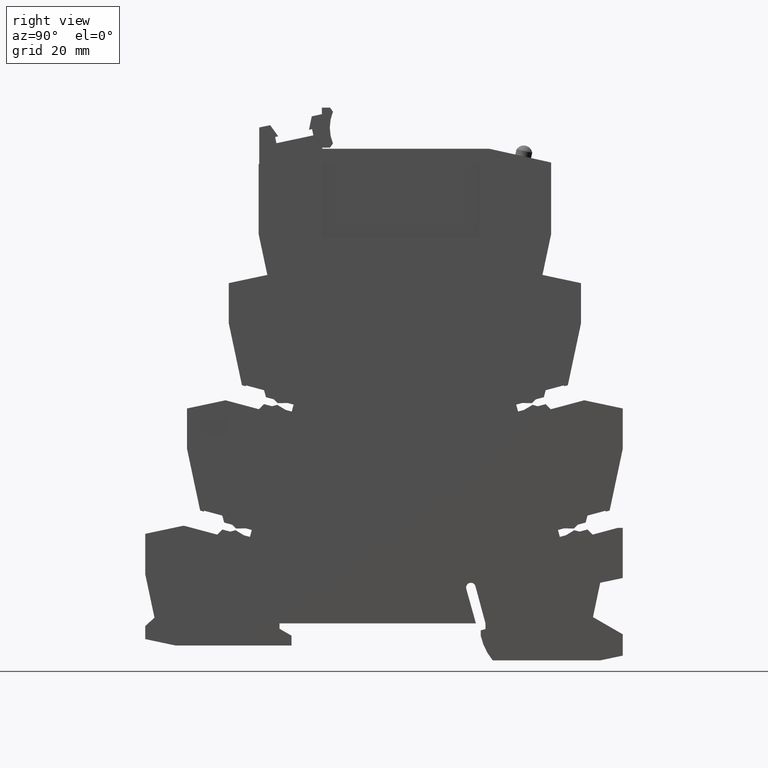
[diagram: clean part render]
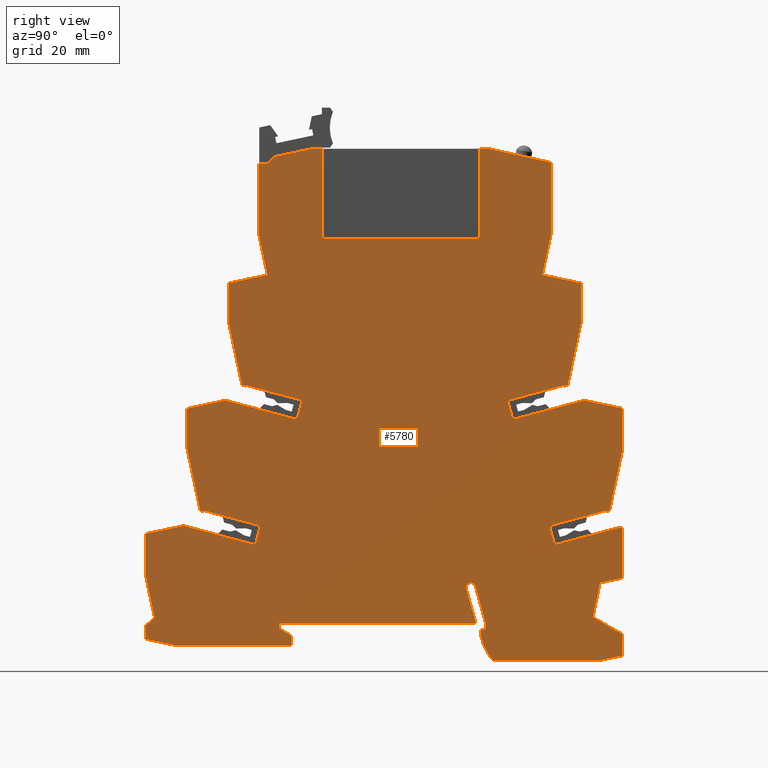
[diagram: same view with one face highlighted and labeled with its STEP entity id]
A machine part, right view. The second image highlights one B-rep face of the part: STEP entity #5780.
In plain terms, the highlighted planar face has unit normal (1, 0, 0).
Its self-contained STEP definition (entity closure, byte-faithful):
#10=CARTESIAN_POINT('',(-41.2024631599214,15.7598284331257,
-3.99680288865056E-14));
#20=DIRECTION('',(-2.14242122378234E-29,-5.76150921084601E-16,1.));
#30=DIRECTION('',(1.,-3.74348700186527E-14,-1.43922604105651E-31));
#40=AXIS2_PLACEMENT_3D('',#10,#20,#30);
#50=PLANE('',#40);
#60=CARTESIAN_POINT('',(-20.1962500104299,34.8627937824497,
-2.01261229904048E-12));
#70=DIRECTION('',(0.743144825475798,0.669130606360631,
4.88723472079392E-15));
#80=VECTOR('',#70,1.);
#90=LINE('',#60,#80);
#100=CARTESIAN_POINT('',(-47.6010493290193,10.1874016427028,
-2.19380069665931E-12));
#110=VERTEX_POINT('',#100);
#120=CARTESIAN_POINT('',(-46.0467110794914,11.5869339958258,
-4.2632564145606E-14));
#130=VERTEX_POINT('',#120);
#140=EDGE_CURVE('',#110,#130,#90,.T.);
#150=ORIENTED_EDGE('',*,*,#140,.F.);
#160=CARTESIAN_POINT('',(-32.8587751002324,-50.4574266940775,
-2.31370478331883E-12));
#170=DIRECTION('',(0.207911690817737,-0.97814760073381,
-7.78023144077334E-15));
#180=VECTOR('',#170,1.);
#190=LINE('',#160,#180);
#200=CARTESIAN_POINT('',(-47.6010491809858,18.8995198284268,
-1.76214598468505E-12));
#210=VERTEX_POINT('',#200);
#220=EDGE_CURVE('',#210,#130,#190,.T.);
#230=ORIENTED_EDGE('',*,*,#220,.T.);
#240=CARTESIAN_POINT('',(-47.6010491809918,-50.4574266940734,
-1.76214598468505E-12));
#250=DIRECTION('',(-8.59705591847893E-14,-1.,4.03965808802365E-27));
#260=VECTOR('',#250,1.);
#270=LINE('',#240,#260);
#280=CARTESIAN_POINT('',(-47.6010491809852,25.6331479114264,
-1.76303416310475E-12));
#290=VERTEX_POINT('',#280);
#300=EDGE_CURVE('',#290,#210,#270,.T.);
#310=ORIENTED_EDGE('',*,*,#300,.T.);
#320=CARTESIAN_POINT('',(-20.1962500104303,31.4582178278494,
-2.01438865587988E-12));
#330=DIRECTION('',(0.978147600733789,0.207911690817837,
6.04506860819232E-15));
#340=VECTOR('',#330,1.);
#350=LINE('',#320,#340);
#360=CARTESIAN_POINT('',(-41.1452750161251,27.0053651022978,
-3.37507799486048E-14));
#370=VERTEX_POINT('',#360);
#380=EDGE_CURVE('',#290,#370,#350,.T.);
#390=ORIENTED_EDGE('',*,*,#380,.F.);
#400=CARTESIAN_POINT('',(-20.1962500104314,21.3920907697968,
-2.02149408323749E-12));
#410=DIRECTION('',(0.965925826288999,-0.258819045102781,
5.7021259793197E-15));
#420=VECTOR('',#410,1.);
#430=LINE('',#400,#420);
#440=CARTESIAN_POINT('',(-29.1677949182364,23.7960089430301,
-3.64153152077051E-14));
#450=VERTEX_POINT('',#440);
#460=EDGE_CURVE('',#370,#450,#430,.T.);
#470=ORIENTED_EDGE('',*,*,#460,.F.);
#480=CARTESIAN_POINT('',(-37.8100769419042,-8.45742666263268,
-5.41788836017076E-14));
#490=DIRECTION('',(-0.258819045102554,-0.965925826289059,
-5.27355936696949E-16));
#500=VECTOR('',#490,1.);
#510=LINE('',#480,#500);
#520=CARTESIAN_POINT('',(-28.3136920694185,26.9835641697074,
-3.46389583683049E-14));
#530=VERTEX_POINT('',#520);
#540=EDGE_CURVE('',#530,#450,#510,.T.);
#550=ORIENTED_EDGE('',*,*,#540,.T.);
#560=CARTESIAN_POINT('',(1.74895067094092,18.9283033250858,
-3.73034936274053E-14));
#570=DIRECTION('',(0.965925826289093,-0.258819045102429,
-1.52655665885959E-16));
#580=VECTOR('',#570,1.);
#590=LINE('',#560,#580);
#600=CARTESIAN_POINT('',(-37.7169289085015,29.5031538869773,
-3.10862446895044E-14));
#610=VERTEX_POINT('',#600);
#620=EDGE_CURVE('',#610,#530,#590,.T.);
#630=ORIENTED_EDGE('',*,*,#620,.T.);
#640=CARTESIAN_POINT('',(-47.8884358109929,-8.45742666263268,
-5.41788836017076E-14));
#650=DIRECTION('',(-0.258819045102684,-0.965925826289025,
-5.27355936696949E-16));
#660=VECTOR('',#650,1.);
#670=LINE('',#640,#660);
#680=CARTESIAN_POINT('',(-37.7557445446579,29.3582919607137,
-3.37507799486048E-14));
#690=VERTEX_POINT('',#680);
#700=EDGE_CURVE('',#610,#690,#670,.T.);
#710=ORIENTED_EDGE('',*,*,#700,.F.);
#720=CARTESIAN_POINT('',(-20.196250010431,24.6532395807655,
-2.01794136955868E-12));
#730=DIRECTION('',(-0.965925826289024,0.258819045102685,
-5.70212597931992E-15));
#740=VECTOR('',#730,1.);
#750=LINE('',#720,#740);
#760=CARTESIAN_POINT('',(-38.3969618472459,29.5301056191149,
-3.28626015289046E-14));
#770=VERTEX_POINT('',#760);
#780=EDGE_CURVE('',#690,#770,#750,.T.);
#790=ORIENTED_EDGE('',*,*,#780,.F.);
#800=CARTESIAN_POINT('',(-45.8383256010708,64.5389695909327,
-2.1511681325137E-12));
#810=DIRECTION('',(-0.207911690817807,0.978147600733796,
-6.95896523024038E-16));
#820=VECTOR('',#810,1.);
#830=LINE('',#800,#820);
#840=CARTESIAN_POINT('',(-40.6010493289954,39.8995198598626,
1.92379445707047E-12));
#850=VERTEX_POINT('',#840);
#860=EDGE_CURVE('',#770,#850,#830,.T.);
#870=ORIENTED_EDGE('',*,*,#860,.F.);
#880=CARTESIAN_POINT('',(-40.6010493290013,-29.4574266626376,
1.92379445707047E-12));
#890=DIRECTION('',(-8.59705591847893E-14,-1.,4.03965808802365E-27));
#900=VECTOR('',#890,1.);
#910=LINE('',#880,#900);
#920=CARTESIAN_POINT('',(-40.6010493289948,46.6331479428621,
1.92290627865077E-12));
#930=VERTEX_POINT('',#920);
#940=EDGE_CURVE('',#930,#850,#910,.T.);
#950=ORIENTED_EDGE('',*,*,#940,.T.);
#960=CARTESIAN_POINT('',(-20.1962500104282,50.9703219276015,
-2.00373051484348E-12));
#970=DIRECTION('',(0.978147600733766,0.207911690817949,
6.04506860819225E-15));
#980=VECTOR('',#970,1.);
#990=LINE('',#960,#980);
#1000=CARTESIAN_POINT('',(-34.1452750815475,48.0053651198326,
-2.08899564313469E-12));
#1010=VERTEX_POINT('',#1000);
#1020=EDGE_CURVE('',#930,#1010,#990,.T.);
#1030=ORIENTED_EDGE('',*,*,#1020,.F.);
#1040=CARTESIAN_POINT('',(-20.1962500104289,44.2677351168232,
-2.00728322852228E-12));
#1050=DIRECTION('',(0.965925826289038,-0.258819045102634,
5.70212597932002E-15));
#1060=VECTOR('',#1050,1.);
#1070=LINE('',#1040,#1060);
#1080=CARTESIAN_POINT('',(-22.1702447486371,44.7966653731087,
-2.39808173319034E-14));
#1090=VERTEX_POINT('',#1080);
#1100=EDGE_CURVE('',#1010,#1090,#1070,.T.);
#1110=ORIENTED_EDGE('',*,*,#1100,.F.);
#1120=CARTESIAN_POINT('',(-36.4396357032687,-8.45742666263268,
-5.50670620214078E-14));
#1130=DIRECTION('',(-0.258819045102555,-0.965925826289059,
-5.27355936696949E-16));
#1140=VECTOR('',#1130,1.);
#1150=LINE('',#1120,#1140);
#1160=CARTESIAN_POINT('',(-21.3161418998062,47.9842205998348,
-2.39808173319034E-14));
#1170=VERTEX_POINT('',#1160);
#1180=EDGE_CURVE('',#1170,#1090,#1150,.T.);
#1190=ORIENTED_EDGE('',*,*,#1180,.T.);
#1200=CARTESIAN_POINT('',(-20.1962500104286,47.6841465121486,
-2.00550687168288E-12));
#1210=DIRECTION('',(-0.96592582628908,0.258819045102477,
-5.70212597932037E-15));
#1220=VECTOR('',#1210,1.);
#1230=LINE('',#1200,#1220);
#1240=CARTESIAN_POINT('',(-30.7169288985628,50.5031539240508,
-2.06767936106189E-12));
#1250=VERTEX_POINT('',#1240);
#1260=EDGE_CURVE('',#1170,#1250,#1230,.T.);
#1270=ORIENTED_EDGE('',*,*,#1260,.F.);
#1280=CARTESIAN_POINT('',(-26.9560434255087,64.5389695909307,
-2.03748129479209E-12));
#1290=DIRECTION('',(-0.258819045102676,-0.965925826289027,
-2.12435537621986E-15));
#1300=VECTOR('',#1290,1.);
#1310=LINE('',#1280,#1300);
#1320=CARTESIAN_POINT('',(-30.7557445446533,50.3582919607126,
-2.06767936106189E-12));
#1330=VERTEX_POINT('',#1320);
#1340=EDGE_CURVE('',#1250,#1330,#1310,.T.);
#1350=ORIENTED_EDGE('',*,*,#1340,.F.);
#1360=CARTESIAN_POINT('',(-20.1962500104286,47.5288839277843,
-2.00550687168288E-12));
#1370=DIRECTION('',(-0.965925826289024,0.258819045102685,
-5.70212597931992E-15));
#1380=VECTOR('',#1370,1.);
#1390=LINE('',#1360,#1380);
#1400=CARTESIAN_POINT('',(-31.3969621612845,50.5301057032615,
-2.07123207474069E-12));
#1410=VERTEX_POINT('',#1400);
#1420=EDGE_CURVE('',#1330,#1410,#1390,.T.);
#1430=ORIENTED_EDGE('',*,*,#1420,.F.);
#1440=CARTESIAN_POINT('',(-34.3746381021517,64.5389695909315,
-2.08189021577709E-12));
#1450=DIRECTION('',(-0.207911690817807,0.978147600733796,
-6.95896523024038E-16));
#1460=VECTOR('',#1450,1.);
#1470=LINE('',#1440,#1460);
#1480=CARTESIAN_POINT('',(-33.6010493289925,60.8995198598723,
-2.28617125230812E-12));
#1490=VERTEX_POINT('',#1480);
#1500=EDGE_CURVE('',#1410,#1490,#1470,.T.);
#1510=ORIENTED_EDGE('',*,*,#1500,.F.);
#1520=CARTESIAN_POINT('',(-33.6010493289984,-8.45742666262793,
-2.28617125230812E-12));
#1530=DIRECTION('',(-8.59705591847893E-14,-1.,4.03965808802365E-27));
#1540=VECTOR('',#1530,1.);
#1550=LINE('',#1520,#1540);
#1560=CARTESIAN_POINT('',(-33.6010493289919,67.6331479428718,
-2.28705943072782E-12));
#1570=VERTEX_POINT('',#1560);
#1580=EDGE_CURVE('',#1570,#1490,#1550,.T.);
#1590=ORIENTED_EDGE('',*,*,#1580,.T.);
#1600=CARTESIAN_POINT('',(-20.1962500104261,70.4824259959085,
-1.99307237380708E-12));
#1610=DIRECTION('',(0.978147600733766,0.207911690817949,
6.04506860819225E-15));
#1620=VECTOR('',#1610,1.);
#1630=LINE('',#1600,#1620);
#1640=CARTESIAN_POINT('',(-27.1452750225532,69.0053651323703,
-8.88178419700125E-15));
#1650=VERTEX_POINT('',#1640);
#1660=EDGE_CURVE('',#1570,#1650,#1630,.T.);
#1670=ORIENTED_EDGE('',*,*,#1660,.F.);
#1680=CARTESIAN_POINT('',(-26.1959133432063,64.5389695909306,
-2.03215222427389E-12));
#1690=DIRECTION('',(-0.207911690817804,0.978147600733796,
-6.95896523024023E-16));
#1700=VECTOR('',#1690,1.);
#1710=LINE('',#1680,#1700);
#1720=CARTESIAN_POINT('',(-28.6010493288756,75.8542447664981,
-3.5527136788005E-15));
#1730=VERTEX_POINT('',#1720);
#1740=EDGE_CURVE('',#1650,#1730,#1710,.T.);
#1750=ORIENTED_EDGE('',*,*,#1740,.F.);
#1760=CARTESIAN_POINT('',(-28.6010493290614,64.5389695909309,
-2.04813943582849E-12));
#1770=DIRECTION('',(1.06627280559842E-13,1.,5.76150921084606E-16));
#1780=VECTOR('',#1770,1.);
#1790=LINE('',#1760,#1780);
#1800=CARTESIAN_POINT('',(-28.6010493290589,87.583147942921,
-2.03392858111329E-12));
#1810=VERTEX_POINT('',#1800);
#1820=EDGE_CURVE('',#1730,#1810,#1790,.T.);
#1830=ORIENTED_EDGE('',*,*,#1820,.F.);
#1840=CARTESIAN_POINT('',(-20.1962500104243,87.5831479429386,
-1.98241423277068E-12));
#1850=DIRECTION('',(1.,-1.06627280562636E-13,6.05765437811063E-15));
#1860=VECTOR('',#1850,1.);
#1870=LINE('',#1840,#1860);
#1880=CARTESIAN_POINT('',(-27.2010493290596,87.5831479429391,
-2.02504679691629E-12));
#1890=VERTEX_POINT('',#1880);
#1900=EDGE_CURVE('',#1810,#1890,#1870,.T.);
#1910=ORIENTED_EDGE('',*,*,#1900,.F.);
#1920=CARTESIAN_POINT('',(-50.2452276810685,64.5389695909332,
-2.17781348510471E-12));
#1930=DIRECTION('',(0.707106781186593,0.707106781186502,
4.69080871213204E-15));
#1940=VECTOR('',#1930,1.);
#1950=LINE('',#1920,#1940);
#1960=CARTESIAN_POINT('',(-25.9737184904052,88.8104787815934,
1.77635683940025E-15));
#1970=VERTEX_POINT('',#1960);
#1980=EDGE_CURVE('',#1890,#1970,#1950,.T.);
#1990=ORIENTED_EDGE('',*,*,#1980,.F.);
#2000=CARTESIAN_POINT('',(-20.196250010424,90.0385176168545,
-1.98063787593128E-12));
#2010=DIRECTION('',(0.978147600733827,0.207911690817657,
6.04506860819245E-15));
#2020=VECTOR('',#2010,1.);
#2030=LINE('',#2000,#2020);
#2040=CARTESIAN_POINT('',(-19.7510496118659,90.1331479128581,
2.66453525910038E-15));
#2050=VERTEX_POINT('',#2040);
#2060=EDGE_CURVE('',#1970,#2050,#2030,.T.);
#2070=ORIENTED_EDGE('',*,*,#2060,.F.);
#2080=CARTESIAN_POINT('',(1.74895067094092,90.1331479128558,
2.66453525910038E-15));
#2090=DIRECTION('',(1.,-1.06264632095782E-13,-4.41762106923767E-29));
#2100=VECTOR('',#2090,1.);
#2110=LINE('',#2080,#2100);
#2120=CARTESIAN_POINT('',(-17.9510493290116,90.1331479128579,
2.66453525910038E-15));
#2130=VERTEX_POINT('',#2120);
#2140=EDGE_CURVE('',#2050,#2130,#2110,.T.);
#2150=ORIENTED_EDGE('',*,*,#2140,.F.);
#2160=CARTESIAN_POINT('',(-17.9510493290187,-8.45742666263268,
-5.41788836017076E-14));
#2170=DIRECTION('',(7.21517471705881E-14,1.,5.76150921084603E-16));
#2180=VECTOR('',#2170,1.);
#2190=LINE('',#2160,#2180);
#2200=CARTESIAN_POINT('',(-17.9510493290127,75.1331479429036,
-6.21724893790088E-15));
#2210=VERTEX_POINT('',#2200);
#2220=EDGE_CURVE('',#2210,#2130,#2190,.T.);
#2230=ORIENTED_EDGE('',*,*,#2220,.T.);
#2240=CARTESIAN_POINT('',(1.74895067094092,75.1331479429026,
-6.21724893790088E-15));
#2250=DIRECTION('',(-1.,5.35592122515322E-14,1.57772181044202E-29));
#2260=VECTOR('',#2250,1.);
#2270=LINE('',#2240,#2260);
#2280=CARTESIAN_POINT('',(8.34895067098745,75.1331479429022,
-6.21724893790088E-15));
#2290=VERTEX_POINT('',#2280);
#2300=EDGE_CURVE('',#2290,#2210,#2270,.T.);
#2310=ORIENTED_EDGE('',*,*,#2300,.T.);
#2320=CARTESIAN_POINT('',(8.34895067098364,-8.45742666263268,
-5.41788836017076E-14));
#2330=DIRECTION('',(-4.56248183688777E-14,-1.,-5.76150921084603E-16));
#2340=VECTOR('',#2330,1.);
#2350=LINE('',#2320,#2340);
#2360=CARTESIAN_POINT('',(8.34895067098814,90.1331479429304,
2.66453525910038E-15));
#2370=VERTEX_POINT('',#2360);
#2380=EDGE_CURVE('',#2370,#2290,#2350,.T.);
#2390=ORIENTED_EDGE('',*,*,#2380,.T.);
#2400=CARTESIAN_POINT('',(1.74895067094092,90.1331479429311,
2.66453525910038E-15));
#2410=DIRECTION('',(1.,-1.06264632095782E-13,-4.41762106923767E-29));
#2420=VECTOR('',#2410,1.);
#2430=LINE('',#2400,#2420);
#2440=CARTESIAN_POINT('',(10.048950523031,90.1331479429302,
2.66453525910038E-15));
#2450=VERTEX_POINT('',#2440);
#2460=EDGE_CURVE('',#2370,#2450,#2430,.T.);
#2470=ORIENTED_EDGE('',*,*,#2460,.F.);
#2480=CARTESIAN_POINT('',(-20.1962500104233,96.8543036170327,
-1.97708516225248E-12));
#2490=DIRECTION('',(0.976187060183942,-0.216930457818704,
5.78841913589485E-15));
#2500=VECTOR('',#2490,1.);
#2510=LINE('',#2480,#2500);
#2520=CARTESIAN_POINT('',(20.3989506709411,87.8331479100607,
8.88178419700125E-16));
#2530=VERTEX_POINT('',#2520);
#2540=EDGE_CURVE('',#2450,#2530,#2510,.T.);
#2550=ORIENTED_EDGE('',*,*,#2540,.F.);
#2560=CARTESIAN_POINT('',(20.3989506709386,64.5389695909256,
-1.74971148680925E-12));
#2570=DIRECTION('',(-1.06627280585922E-13,-1.,-5.76150921084606E-16));
#2580=VECTOR('',#2570,1.);
#2590=LINE('',#2560,#2580);
#2600=CARTESIAN_POINT('',(20.3989506709398,75.854245463496,
-3.5527136788005E-15));
#2610=VERTEX_POINT('',#2600);
#2620=EDGE_CURVE('',#2530,#2610,#2590,.T.);
#2630=ORIENTED_EDGE('',*,*,#2620,.F.);
#2640=CARTESIAN_POINT('',(17.9938145371155,64.5389695909259,
-1.76569869836385E-12));
#2650=DIRECTION('',(-0.207911690818012,-0.978147600733752,
-1.82301780526294E-15));
#2660=VECTOR('',#2650,1.);
#2670=LINE('',#2640,#2660);
#2680=CARTESIAN_POINT('',(18.9431762164679,69.0053651323864,
-7.105427357601E-15));
#2690=VERTEX_POINT('',#2680);
#2700=EDGE_CURVE('',#2610,#2690,#2670,.T.);
#2710=ORIENTED_EDGE('',*,*,#2700,.F.);
#2720=CARTESIAN_POINT('',(-20.1962500104254,77.3247069969321,
-1.98774330328888E-12));
#2730=DIRECTION('',(0.978147600733705,-0.207911690818232,
5.80549158385395E-15));
#2740=VECTOR('',#2730,1.);
#2750=LINE('',#2720,#2740);
#2760=CARTESIAN_POINT('',(25.3989505230053,67.6331479428496,
1.71063163634244E-12));
#2770=VERTEX_POINT('',#2760);
#2780=EDGE_CURVE('',#2690,#2770,#2750,.T.);
#2790=ORIENTED_EDGE('',*,*,#2780,.F.);
#2800=CARTESIAN_POINT('',(25.3989505230049,64.5389695909077,
3.5527136788005E-15));
#2810=DIRECTION('',(-1.26558704972732E-13,-1.,1.1332085511113E-26));
#2820=VECTOR('',#2810,1.);
#2830=LINE('',#2800,#2820);
#2840=CARTESIAN_POINT('',(25.3989505230044,60.8995198598501,
1.71063163634244E-12));
#2850=VERTEX_POINT('',#2840);
#2860=EDGE_CURVE('',#2770,#2850,#2830,.T.);
#2870=ORIENTED_EDGE('',*,*,#2860,.F.);
#2880=CARTESIAN_POINT('',(26.1725394442132,64.538969590925,
-1.71418435002124E-12));
#2890=DIRECTION('',(-0.207911690818012,-0.978147600733752,
-1.82301780526294E-15));
#2900=VECTOR('',#2890,1.);
#2910=LINE('',#2880,#2900);
#2920=CARTESIAN_POINT('',(23.194863485466,50.5301056191508,
-1.74082970261225E-12));
#2930=VERTEX_POINT('',#2920);
#2940=EDGE_CURVE('',#2850,#2930,#2910,.T.);
#2950=ORIENTED_EDGE('',*,*,#2940,.F.);
#2960=CARTESIAN_POINT('',(-20.1962500104295,38.9034917992438,
-2.01083594220108E-12));
#2970=DIRECTION('',(-0.965925826289099,-0.258819045102405,
-6.00036364178017E-15));
#2980=VECTOR('',#2970,1.);
#2990=LINE('',#2960,#2980);
#3000=CARTESIAN_POINT('',(22.5536461827138,50.3582919607054,
-1.74615877313045E-12));
#3010=VERTEX_POINT('',#3000);
#3020=EDGE_CURVE('',#2930,#3010,#2990,.T.);
#3030=ORIENTED_EDGE('',*,*,#3020,.F.);
#3040=CARTESIAN_POINT('',(18.7539450635711,64.5389695909258,
-1.76036962784565E-12));
#3050=DIRECTION('',(-0.258819045102404,0.9659258262891,
-1.01131726718776E-15));
#3060=VECTOR('',#3050,1.);
#3070=LINE('',#3040,#3060);
#3080=CARTESIAN_POINT('',(22.5148305366239,50.5031539240416,
-1.74438241629105E-12));
#3090=VERTEX_POINT('',#3080);
#3100=EDGE_CURVE('',#3010,#3090,#3070,.T.);
#3110=ORIENTED_EDGE('',*,*,#3100,.F.);
#3120=CARTESIAN_POINT('',(-20.1962500104295,39.0587543836125,
-2.01083594220108E-12));
#3130=DIRECTION('',(-0.96592582628915,-0.258819045102215,
-6.00036364178037E-15));
#3140=VECTOR('',#3130,1.);
#3150=LINE('',#3120,#3140);
#3160=CARTESIAN_POINT('',(13.1115934112808,47.9835641697545,
-2.30926389122033E-14));
#3170=VERTEX_POINT('',#3160);
#3180=EDGE_CURVE('',#3090,#3170,#3150,.T.);
#3190=ORIENTED_EDGE('',*,*,#3180,.F.);
#3200=CARTESIAN_POINT('',(28.2349113248289,-8.45742666263268,
-5.41788836017076E-14));
#3210=DIRECTION('',(-0.258819045102482,0.965925826289079,
5.27355936696949E-16));
#3220=VECTOR('',#3210,1.);
#3230=LINE('',#3200,#3220);
#3240=CARTESIAN_POINT('',(13.9656962601114,44.7960089430289,
-2.48689957516035E-14));
#3250=VERTEX_POINT('',#3240);
#3260=EDGE_CURVE('',#3250,#3170,#3230,.T.);
#3270=ORIENTED_EDGE('',*,*,#3260,.T.);
#3280=CARTESIAN_POINT('',(-20.1962500104298,35.6423429882829,
-2.01261229904048E-12));
#3290=DIRECTION('',(0.965925826289113,0.258819045102354,
6.00036364178023E-15));
#3300=VECTOR('',#3290,1.);
#3310=LINE('',#3280,#3300);
#3320=CARTESIAN_POINT('',(25.943176523182,48.0053650671908,
-2.1316282072803E-14));
#3330=VERTEX_POINT('',#3320);
#3340=EDGE_CURVE('',#3250,#3330,#3310,.T.);
#3350=ORIENTED_EDGE('',*,*,#3340,.F.);
#3360=CARTESIAN_POINT('',(-20.1962500104275,57.812602928621,
-2.00017780116468E-12));
#3370=DIRECTION('',(0.978147600733721,-0.207911690818157,
5.80549158385408E-15));
#3380=VECTOR('',#3370,1.);
#3390=LINE('',#3360,#3380);
#3400=CARTESIAN_POINT('',(32.3989505230052,46.6331479428671,
-5.23669996255194E-12));
#3410=VERTEX_POINT('',#3400);
#3420=EDGE_CURVE('',#3330,#3410,#3390,.T.);
#3430=ORIENTED_EDGE('',*,*,#3420,.F.);
#3440=CARTESIAN_POINT('',(32.3989505230048,43.5389695909252,
-6.94377888521558E-12));
#3450=DIRECTION('',(-1.26558704972732E-13,-1.,1.1332085511113E-26));
#3460=VECTOR('',#3450,1.);
#3470=LINE('',#3440,#3460);
#3480=CARTESIAN_POINT('',(32.3989505230044,39.8995198598676,
-5.23669996255194E-12));
#3490=VERTEX_POINT('',#3480);
#3500=EDGE_CURVE('',#3410,#3490,#3470,.T.);
#3510=ORIENTED_EDGE('',*,*,#3500,.F.);
#3520=CARTESIAN_POINT('',(37.6362272392142,64.5389695909238,
-1.64490643328463E-12));
#3530=DIRECTION('',(-0.207911690818012,-0.978147600733752,
-1.82301780526294E-15));
#3540=VECTOR('',#3530,1.);
#3550=LINE('',#3520,#3540);
#3560=CARTESIAN_POINT('',(30.1948635032595,29.5301057032142,
-3.28626015289046E-14));
#3570=VERTEX_POINT('',#3560);
#3580=EDGE_CURVE('',#3490,#3570,#3550,.T.);
#3590=ORIENTED_EDGE('',*,*,#3580,.F.);
#3600=CARTESIAN_POINT('',(-20.1962500104319,16.0278475315614,
-2.02327044007689E-12));
#3610=DIRECTION('',(-0.965925826289288,-0.258819045101701,
-6.0003636417809E-15));
#3620=VECTOR('',#3610,1.);
#3630=LINE('',#3600,#3620);
#3640=CARTESIAN_POINT('',(29.5536458866782,29.358291960679,
-3.28626015289046E-14));
#3650=VERTEX_POINT('',#3640);
#3660=EDGE_CURVE('',#3570,#3650,#3630,.T.);
#3670=ORIENTED_EDGE('',*,*,#3660,.F.);
#3680=CARTESIAN_POINT('',(39.6863371529627,-8.45742666263268,
-5.41788836017076E-14));
#3690=DIRECTION('',(-0.2588190451017,0.965925826289288,
5.41233724504764E-16));
#3700=VECTOR('',#3690,1.);
#3710=LINE('',#3680,#3700);
#3720=CARTESIAN_POINT('',(29.5148302504912,29.5031538870576,
-3.28626015289046E-14));
#3730=VERTEX_POINT('',#3720);
#3740=EDGE_CURVE('',#3650,#3730,#3710,.T.);
#3750=ORIENTED_EDGE('',*,*,#3740,.F.);
#3760=CARTESIAN_POINT('',(1.74895067094092,22.0633088765823,
-3.64153152077051E-14));
#3770=DIRECTION('',(0.965925826289113,0.258819045102355,
1.52655665885959E-16));
#3780=VECTOR('',#3770,1.);
#3790=LINE('',#3760,#3780);
#3800=CARTESIAN_POINT('',(20.11159341128,26.983564169754,
-3.37507799486048E-14));
#3810=VERTEX_POINT('',#3800);
#3820=EDGE_CURVE('',#3810,#3730,#3790,.T.);
#3830=ORIENTED_EDGE('',*,*,#3820,.T.);
#3840=CARTESIAN_POINT('',(29.6079782837753,-8.45742666263268,
-5.41788836017076E-14));
#3850=DIRECTION('',(-0.258819045102482,0.965925826289079,
5.27355936696949E-16));
#3860=VECTOR('',#3850,1.);
#3870=LINE('',#3840,#3860);
#3880=CARTESIAN_POINT('',(20.9656962601107,23.7960089430282,
-3.64153152077051E-14));
#3890=VERTEX_POINT('',#3880);
#3900=EDGE_CURVE('',#3890,#3810,#3870,.T.);
#3910=ORIENTED_EDGE('',*,*,#3900,.T.);
#3920=CARTESIAN_POINT('',(-20.1962500104323,12.7666987206053,
-2.02504679691629E-12));
#3930=DIRECTION('',(0.965925826289142,0.258819045102245,
6.00036364178034E-15));
#3940=VECTOR('',#3930,1.);
#3950=LINE('',#3920,#3940);
#3960=CARTESIAN_POINT('',(31.554043007788,26.6331479428955,
-1.70352620898484E-12));
#3970=VERTEX_POINT('',#3960);
#3980=EDGE_CURVE('',#3890,#3970,#3950,.T.);
#3990=ORIENTED_EDGE('',*,*,#3980,.F.);
#4000=CARTESIAN_POINT('',(1.74895067094092,26.6331479428987,
-3.37507799486048E-14));
#4010=DIRECTION('',(-1.,1.06264632078761E-13,4.41762106923767E-29));
#4020=VECTOR('',#4010,1.);
#4030=LINE('',#4000,#4020);
#4040=CARTESIAN_POINT('',(32.3989506710251,26.6331479428954,
-1.69908531688634E-12));
#4050=VERTEX_POINT('',#4040);
#4060=EDGE_CURVE('',#4050,#3970,#4030,.T.);
#4070=ORIENTED_EDGE('',*,*,#4060,.T.);
#4080=CARTESIAN_POINT('',(32.3989506710292,64.5389695909244,
-1.67688085639384E-12));
#4090=DIRECTION('',(-1.06445956345116E-13,-1.,-5.76150921084605E-16));
#4100=VECTOR('',#4090,1.);
#4110=LINE('',#4080,#4100);
#4120=CARTESIAN_POINT('',(32.3989506710251,18.2331479429089,
-1.70352620898484E-12));
#4130=VERTEX_POINT('',#4120);
#4140=EDGE_CURVE('',#4050,#4130,#4110,.T.);
#4150=ORIENTED_EDGE('',*,*,#4140,.F.);
#4160=CARTESIAN_POINT('',(-20.1962500104329,7.16047411523918,
-2.02859951059509E-12));
#4170=DIRECTION('',(-0.97854978498677,-0.206010481049741,
-6.04640951763414E-15));
#4180=VECTOR('',#4170,1.);
#4190=LINE('',#4160,#4180);
#4200=CARTESIAN_POINT('',(28.617300280122,17.4370110185087,
-1.72839520473644E-12));
#4210=VERTEX_POINT('',#4200);
#4220=EDGE_CURVE('',#4130,#4210,#4190,.T.);
#4230=ORIENTED_EDGE('',*,*,#4220,.F.);
#4240=CARTESIAN_POINT('',(38.5335020848455,64.5389695909237,
-1.63957736276643E-12));
#4250=DIRECTION('',(-0.206010481049947,-0.978549784986727,
-1.81173265241552E-15));
#4260=VECTOR('',#4250,1.);
#4270=LINE('',#4240,#4260);
#4280=CARTESIAN_POINT('',(27.4063960526572,11.6852159380577,
-1.73727698893345E-12));
#4290=VERTEX_POINT('',#4280);
#4300=EDGE_CURVE('',#4210,#4290,#4270,.T.);
#4310=ORIENTED_EDGE('',*,*,#4300,.F.);
#4320=CARTESIAN_POINT('',(1.74895067298528,26.4985489347334,
-1.88471460660367E-12));
#4330=DIRECTION('',(0.866025403784385,-0.500000000000092,
4.97764470035291E-15));
#4340=VECTOR('',#4330,1.);
#4350=LINE('',#4320,#4340);
#4360=CARTESIAN_POINT('',(32.398950670984,8.80276318522187,
-1.70530256582424E-12));
#4370=VERTEX_POINT('',#4360);
#4380=EDGE_CURVE('',#4290,#4370,#4350,.T.);
#4390=ORIENTED_EDGE('',*,*,#4380,.F.);
#4400=CARTESIAN_POINT('',(32.3989506709899,64.5389695909244,
-1.67688085639384E-12));
#4410=DIRECTION('',(-1.06445956345116E-13,-1.,-5.76150921084605E-16));
#4420=VECTOR('',#4410,1.);
#4430=LINE('',#4400,#4420);
#4440=CARTESIAN_POINT('',(32.3989506709836,5.23314794290049,
-1.71063163634244E-12));
#4450=VERTEX_POINT('',#4440);
#4460=EDGE_CURVE('',#4370,#4450,#4430,.T.);
#4470=ORIENTED_EDGE('',*,*,#4460,.F.);
#4480=CARTESIAN_POINT('',(-20.1962500104343,-5.8395258847609,
-2.03570493795269E-12));
#4490=DIRECTION('',(-0.97854978498677,-0.206010481049744,
-6.04640951763414E-15));
#4500=VECTOR('',#4490,1.);
#4510=LINE('',#4480,#4500);
#4520=CARTESIAN_POINT('',(28.5989506709844,4.43314794290087,
-1.73550063209404E-12));
#4530=VERTEX_POINT('',#4520);
#4540=EDGE_CURVE('',#4450,#4530,#4510,.T.);
#4550=ORIENTED_EDGE('',*,*,#4540,.F.);
#4560=CARTESIAN_POINT('',(-20.1962500104332,4.43314794290605,
-2.03037586743449E-12));
#4570=DIRECTION('',(-1.,1.06264632078761E-13,-6.05765437811063E-15));
#4580=VECTOR('',#4570,1.);
#4590=LINE('',#4560,#4580);
#4600=CARTESIAN_POINT('',(10.6160940885705,4.43314794290234,
-2.30038210702332E-12));
#4610=VERTEX_POINT('',#4600);
#4620=EDGE_CURVE('',#4530,#4610,#4590,.T.);
#4630=ORIENTED_EDGE('',*,*,#4620,.F.);
#4640=CARTESIAN_POINT('',(17.8989506709841,10.533147942902,
-1.79767312147305E-12));
#4650=DIRECTION('',(6.88518490957563E-14,5.76150921077264E-16,-1.));
#4660=DIRECTION('',(1.,-1.06264632090662E-13,6.88518490957562E-14));
#4670=AXIS2_PLACEMENT_3D('',#4640,#4650,#4660);
#4680=CIRCLE('',#4670,9.49999999999998);
#4690=CARTESIAN_POINT('',(8.59895067098398,8.59407599993592,
-2.43893794049654E-12));
#4700=VERTEX_POINT('',#4690);
#4710=EDGE_CURVE('',#4610,#4700,#4680,.T.);
#4720=ORIENTED_EDGE('',*,*,#4710,.F.);
#4730=CARTESIAN_POINT('',(8.59895067098993,64.5389695909269,
-1.82076576038526E-12));
#4740=DIRECTION('',(1.06264632090662E-13,1.,5.76150921084604E-16));
#4750=VECTOR('',#4740,1.);
#4760=LINE('',#4730,#4750);
#4770=CARTESIAN_POINT('',(8.59895067098408,9.46878858895808,
-1.85274018349446E-12));
#4780=VERTEX_POINT('',#4770);
#4790=EDGE_CURVE('',#4700,#4780,#4760,.T.);
#4800=ORIENTED_EDGE('',*,*,#4790,.F.);
#4810=CARTESIAN_POINT('',(-20.1962500104334,1.75313782048344,
-2.03215222427389E-12));
#4820=DIRECTION('',(0.965925826289096,0.258819045102418,
6.00036364178017E-15));
#4830=VECTOR('',#4820,1.);
#4840=LINE('',#4810,#4830);
#4850=CARTESIAN_POINT('',(9.39895067098385,9.68314794290283,
-1.84918746981566E-12));
#4860=VERTEX_POINT('',#4850);
#4870=EDGE_CURVE('',#4780,#4860,#4840,.T.);
#4880=ORIENTED_EDGE('',*,*,#4870,.F.);
#4890=CARTESIAN_POINT('',(9.39895067098968,64.5389695909268,
-1.81721304670646E-12));
#4900=DIRECTION('',(1.06445956345116E-13,1.,5.76150921084605E-16));
#4910=VECTOR('',#4900,1.);
#4920=LINE('',#4890,#4910);
#4930=CARTESIAN_POINT('',(9.39895067098399,10.6331479429028,
-1.84741111297626E-12));
#4940=VERTEX_POINT('',#4930);
#4950=EDGE_CURVE('',#4860,#4940,#4920,.T.);
#4960=ORIENTED_EDGE('',*,*,#4950,.F.);
#4970=CARTESIAN_POINT('',(-5.16736771700285,64.5389695909284,
-1.90425453183707E-12));
#4980=DIRECTION('',(-0.260861917169094,0.965376123679711,
-1.02400899177118E-15));
#4990=VECTOR('',#4980,1.);
#5000=LINE('',#4970,#4990);
#5010=CARTESIAN_POINT('',(7.72125156992846,16.8418374766382,
-1.85451654033386E-12));
#5020=VERTEX_POINT('',#5010);
#5030=EDGE_CURVE('',#4940,#5020,#5000,.T.);
#5040=ORIENTED_EDGE('',*,*,#5030,.F.);
#5050=CARTESIAN_POINT('',(6.94895067098468,16.6331479429031,
-1.85984561085206E-12));
#5060=DIRECTION('',(6.88518490957563E-14,5.76150921077264E-16,-1.));
#5070=DIRECTION('',(1.,-1.06264632090662E-13,6.88518490957562E-14));
#5080=AXIS2_PLACEMENT_3D('',#5050,#5060,#5070);
#5090=CIRCLE('',#5080,0.799999999999996);
#5100=CARTESIAN_POINT('',(6.17860602899723,16.4173491186216,
-1.86162196769146E-12));
#5110=VERTEX_POINT('',#5100);
#5120=EDGE_CURVE('',#5110,#5020,#5090,.T.);
#5130=ORIENTED_EDGE('',*,*,#5120,.T.);
#5140=CARTESIAN_POINT('',(-7.30183967599467,64.5389695909286,
-1.91668902971287E-12));
#5150=DIRECTION('',(0.269748530351836,-0.962930802484283,
1.07924989708329E-15));
#5160=VECTOR('',#5150,1.);
#5170=LINE('',#5140,#5160);
#5180=CARTESIAN_POINT('',(7.79895067098401,10.633147942903,
-1.85451654033386E-12));
#5190=VERTEX_POINT('',#5180);
#5200=EDGE_CURVE('',#5110,#5190,#5170,.T.);
#5210=ORIENTED_EDGE('',*,*,#5200,.F.);
#5220=CARTESIAN_POINT('',(-20.1962500104325,10.633147942906,
-2.02682315375569E-12));
#5230=DIRECTION('',(-1.,1.06264632078761E-13,-6.05765437811063E-15));
#5240=VECTOR('',#5230,1.);
#5250=LINE('',#5220,#5240);
#5260=CARTESIAN_POINT('',(-25.1010493290151,10.6331479429065,
-2.05702122002549E-12));
#5270=VERTEX_POINT('',#5260);
#5280=EDGE_CURVE('',#5190,#5270,#5250,.T.);
#5290=ORIENTED_EDGE('',*,*,#5280,.F.);
#5300=CARTESIAN_POINT('',(-25.1010493290102,64.5389695909305,
-2.02504679691629E-12));
#5310=DIRECTION('',(-1.06445956345116E-13,-1.,-5.76150921084605E-16));
#5320=VECTOR('',#5310,1.);
#5330=LINE('',#5300,#5320);
#5340=CARTESIAN_POINT('',(-25.1010493290161,9.73314794290654,
-2.05524486318609E-12));
#5350=VERTEX_POINT('',#5340);
#5360=EDGE_CURVE('',#5270,#5350,#5330,.T.);
#5370=ORIENTED_EDGE('',*,*,#5360,.F.);
#5380=CARTESIAN_POINT('',(-20.1962500104329,6.90136073600077,
-2.02682315375569E-12));
#5390=DIRECTION('',(0.866025403784386,-0.500000000000092,
4.95800711824751E-15));
#5400=VECTOR('',#5390,1.);
#5410=LINE('',#5380,#5400);
#5420=CARTESIAN_POINT('',(-23.1010493290164,8.57844740452718,
-2.04281036531029E-12));
#5430=VERTEX_POINT('',#5420);
#5440=EDGE_CURVE('',#5350,#5430,#5410,.T.);
#5450=ORIENTED_EDGE('',*,*,#5440,.F.);
#5460=CARTESIAN_POINT('',(-23.1010493290104,64.5389695909303,
-2.01261229904048E-12));
#5470=DIRECTION('',(-1.06445956345116E-13,-1.,-5.76150921084605E-16));
#5480=VECTOR('',#5470,1.);
#5490=LINE('',#5460,#5480);
#5500=CARTESIAN_POINT('',(-23.1010493290165,6.93314794290058,
-2.04636307898909E-12));
#5510=VERTEX_POINT('',#5500);
#5520=EDGE_CURVE('',#5430,#5510,#5490,.T.);
#5530=ORIENTED_EDGE('',*,*,#5520,.F.);
#5540=CARTESIAN_POINT('',(-20.1962500104329,6.93314794290028,
-2.02859951059509E-12));
#5550=DIRECTION('',(-1.,1.06445956333214E-13,-6.05765437811063E-15));
#5560=VECTOR('',#5550,1.);
#5570=LINE('',#5540,#5560);
#5580=CARTESIAN_POINT('',(-42.5510493290012,6.93314794290247,
-2.16537898722891E-12));
#5590=VERTEX_POINT('',#5580);
#5600=EDGE_CURVE('',#5510,#5590,#5570,.T.);
#5610=ORIENTED_EDGE('',*,*,#5600,.F.);
#5620=CARTESIAN_POINT('',(-20.1962500104334,2.18148866292198,
-2.03215222427389E-12));
#5630=DIRECTION('',(-0.978147600733785,0.207911690817859,
-5.80549158385465E-15));
#5640=VECTOR('',#5630,1.);
#5650=LINE('',#5620,#5640);
#5660=CARTESIAN_POINT('',(-47.6010493290187,8.00655857934035,
-2.19380069665931E-12));
#5670=VERTEX_POINT('',#5660);
#5680=EDGE_CURVE('',#5590,#5670,#5650,.T.);
#5690=ORIENTED_EDGE('',*,*,#5680,.F.);
#5700=CARTESIAN_POINT('',(-47.6010493290135,64.5389695909329,
-2.1618262735501E-12));
#5710=DIRECTION('',(1.06264632074879E-13,1.,5.76150921084604E-16));
#5720=VECTOR('',#5710,1.);
#5730=LINE('',#5700,#5720);
#5740=EDGE_CURVE('',#5670,#110,#5730,.T.);
#5750=ORIENTED_EDGE('',*,*,#5740,.F.);
#5760=EDGE_LOOP('',(#5750,#5690,#5610,#5530,#5450,#5370,#5290,#5210,
#5130,#5040,#4960,#4880,#4800,#4720,#4630,#4550,#4470,#4390,#4310,#4230,
#4150,#4070,#3990,#3910,#3830,#3750,#3670,#3590,#3510,#3430,#3350,#3270,
#3190,#3110,#3030,#2950,#2870,#2790,#2710,#2630,#2550,#2470,#2390,#2310,
#2230,#2150,#2070,#1990,#1910,#1830,#1750,#1670,#1590,#1510,#1430,#1350,
#1270,#1190,#1110,#1030,#950,#870,#790,#710,#630,#550,#470,#390,#310,
#230,#150));
#5770=FACE_OUTER_BOUND('',#5760,.T.);
#5780=ADVANCED_FACE('',(#5770),#50,.T.);